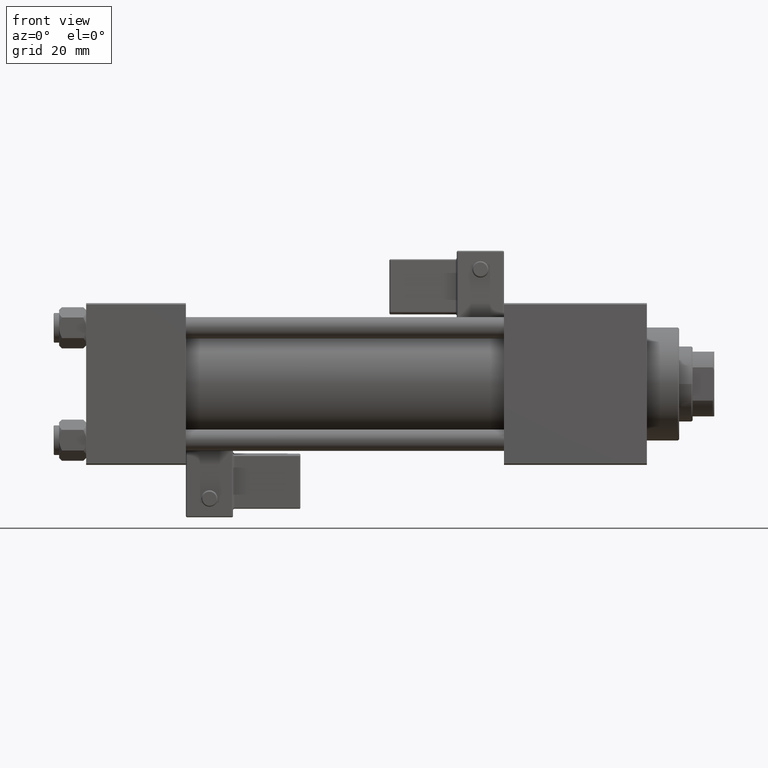
[diagram: clean part render]
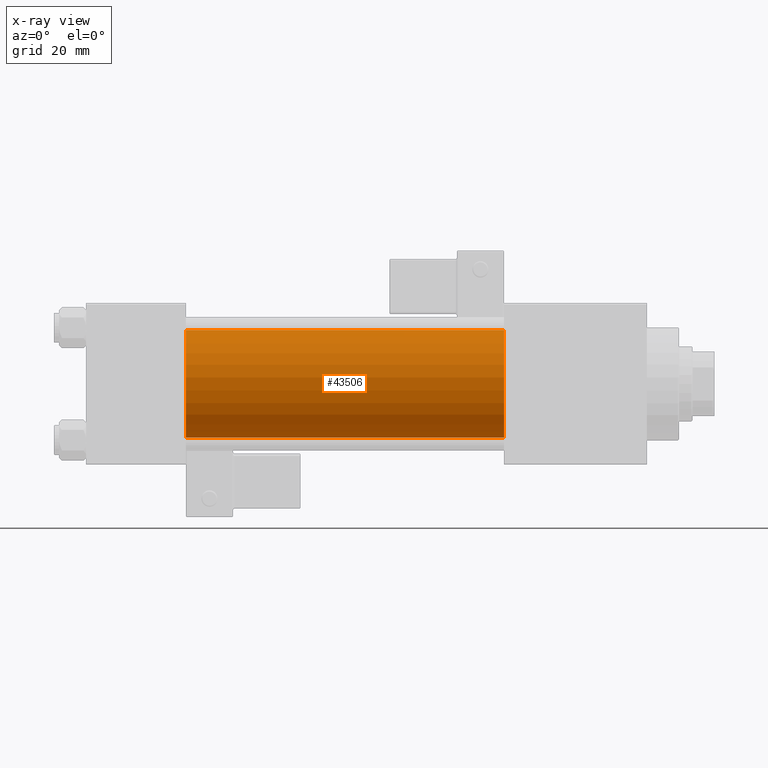
[diagram: x-ray — body ghosted, one internal face saturated and labeled with its STEP entity id]
A machine part, front view, then the same camera in x-ray: the body is ghosted and one INTERNAL B-rep face — a face not visible from any outside direction — is saturated and labeled: STEP entity #43506.
In plain terms, the highlighted cylindrical surface (partial cylindrical patch) has radius 20 mm, axis along (-1, -0, -0).
Its self-contained STEP definition (entity closure, byte-faithful):
#6202 = AXIS2_PLACEMENT_3D ( 'NONE', #10356, #36455, #19578 ) ;
#7748 = CARTESIAN_POINT ( 'NONE',  ( 37.00000000000000000, -2.602085213965210642E-15, 0.000000000000000000 ) ) ;
#7917 = DIRECTION ( 'NONE',  ( -1.000000000000000000, -0.000000000000000000, -0.000000000000000000 ) ) ;
#8864 = ORIENTED_EDGE ( 'NONE', *, *, #37016, .F. ) ;
#9246 = CIRCLE ( 'NONE', #50881, 20.00000000000000000 ) ;
#10356 = CARTESIAN_POINT ( 'NONE',  ( 155.0000000000000000, -2.602085213965210642E-15, 0.000000000000000000 ) ) ;
#10605 = VECTOR ( 'NONE', #31890, 1000.000000000000000 ) ;
#10632 = VERTEX_POINT ( 'NONE', #22902 ) ;
#13291 = VERTEX_POINT ( 'NONE', #41524 ) ;
#14557 = CARTESIAN_POINT ( 'NONE',  ( 155.0000000000000000, -1.527916156705042519E-16, -20.00000000000000000 ) ) ;
#15294 = LINE ( 'NONE', #40594, #10605 ) ;
#16059 = DIRECTION ( 'NONE',  ( 0.000000000000000000, 0.000000000000000000, 1.000000000000000000 ) ) ;
#16216 = CARTESIAN_POINT ( 'NONE',  ( 155.0000000000000000, -2.602085213965210642E-15, 20.00000000000000000 ) ) ;
#16623 = CIRCLE ( 'NONE', #6202, 20.00000000000000000 ) ;
#17394 = VERTEX_POINT ( 'NONE', #14557 ) ;
#19578 = DIRECTION ( 'NONE',  ( 0.000000000000000000, 0.000000000000000000, -1.000000000000000000 ) ) ;
#20579 = ORIENTED_EDGE ( 'NONE', *, *, #43700, .F. ) ;
#22902 = CARTESIAN_POINT ( 'NONE',  ( 37.00000000000000000, -2.602085213965210642E-15, 20.00000000000000000 ) ) ;
#24085 = ORIENTED_EDGE ( 'NONE', *, *, #47866, .T. ) ;
#25099 = AXIS2_PLACEMENT_3D ( 'NONE', #52795, #7917, #16059 ) ;
#25575 = VERTEX_POINT ( 'NONE', #50011 ) ;
#31890 = DIRECTION ( 'NONE',  ( -1.000000000000000000, -0.000000000000000000, -0.000000000000000000 ) ) ;
#35154 = EDGE_LOOP ( 'NONE', ( #24085, #38428, #8864, #20579 ) ) ;
#36031 = DIRECTION ( 'NONE',  ( 1.000000000000000000, 0.000000000000000000, 0.000000000000000000 ) ) ;
#36455 = DIRECTION ( 'NONE',  ( 1.000000000000000000, 0.000000000000000000, 0.000000000000000000 ) ) ;
#36752 = FACE_OUTER_BOUND ( 'NONE', #35154, .T. ) ;
#36902 = LINE ( 'NONE', #16216, #49441 ) ;
#37016 = EDGE_CURVE ( 'NONE', #10632, #13291, #9246, .T. ) ;
#38428 = ORIENTED_EDGE ( 'NONE', *, *, #53066, .T. ) ;
#40594 = CARTESIAN_POINT ( 'NONE',  ( 155.0000000000000000, -1.527916156705042519E-16, -20.00000000000000000 ) ) ;
#41524 = CARTESIAN_POINT ( 'NONE',  ( 37.00000000000000000, -1.527916156705042519E-16, -20.00000000000000000 ) ) ;
#43506 = ADVANCED_FACE ( 'NONE', ( #36752 ), #53334, .F. ) ;
#43700 = EDGE_CURVE ( 'NONE', #25575, #10632, #36902, .T. ) ;
#44789 = DIRECTION ( 'NONE',  ( -1.000000000000000000, -0.000000000000000000, -0.000000000000000000 ) ) ;
#47866 = EDGE_CURVE ( 'NONE', #25575, #17394, #16623, .T. ) ;
#49441 = VECTOR ( 'NONE', #44789, 1000.000000000000000 ) ;
#50011 = CARTESIAN_POINT ( 'NONE',  ( 155.0000000000000000, -2.602085213965210642E-15, 20.00000000000000000 ) ) ;
#50881 = AXIS2_PLACEMENT_3D ( 'NONE', #7748, #36031, #53707 ) ;
#52795 = CARTESIAN_POINT ( 'NONE',  ( 155.0000000000000000, -2.602085213965210642E-15, 0.000000000000000000 ) ) ;
#53066 = EDGE_CURVE ( 'NONE', #17394, #13291, #15294, .T. ) ;
#53334 = CYLINDRICAL_SURFACE ( 'NONE', #25099, 20.00000000000000000 ) ;
#53707 = DIRECTION ( 'NONE',  ( 0.000000000000000000, 0.000000000000000000, -1.000000000000000000 ) ) ;